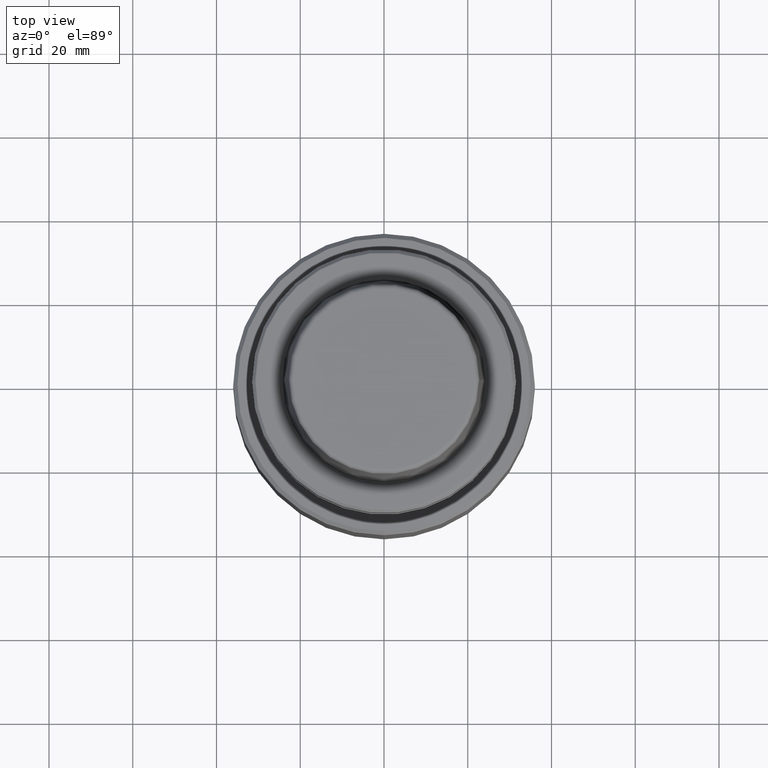
[diagram: clean part render]
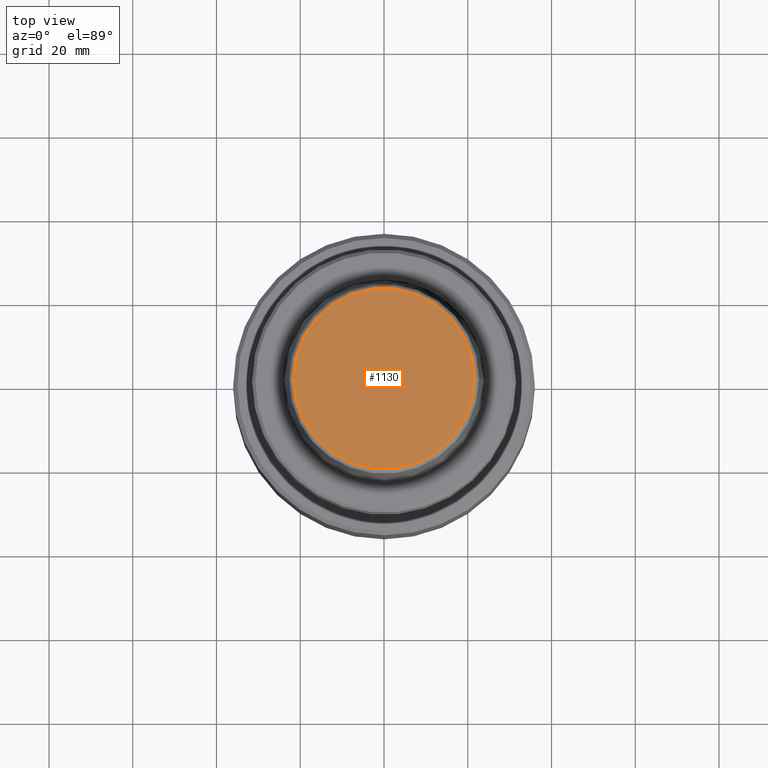
[diagram: same view with one face highlighted and labeled with its STEP entity id]
A machine part, top view. The second image highlights one B-rep face of the part: STEP entity #1130.
In plain terms, the highlighted planar face has unit normal (0, 0, -1).
Its self-contained STEP definition (entity closure, byte-faithful):
#16 = DIRECTION ( 'NONE',  ( -1.000000000000000000, 0.0000000000000000000, -0.0000000000000000000 ) ) ;
#78 = EDGE_CURVE ( 'NONE', #571, #1124, #728, .T. ) ;
#87 = CIRCLE ( 'NONE', #699, 21.58108272732117100 ) ;
#169 = EDGE_CURVE ( 'NONE', #1124, #571, #87, .T. ) ;
#222 = PLANE ( 'NONE',  #1311 ) ;
#358 = CARTESIAN_POINT ( 'NONE',  ( 21.58108272732117100, 0.0000000000000000000, 31.89999999999999900 ) ) ;
#512 = DIRECTION ( 'NONE',  ( 1.000000000000000000, 0.0000000000000000000, 0.0000000000000000000 ) ) ;
#534 = CARTESIAN_POINT ( 'NONE',  ( 0.0000000000000000000, 0.0000000000000000000, 31.89999999999999900 ) ) ;
#560 = DIRECTION ( 'NONE',  ( -0.0000000000000000000, -0.0000000000000000000, 1.000000000000000000 ) ) ;
#571 = VERTEX_POINT ( 'NONE', #358 ) ;
#600 = FACE_OUTER_BOUND ( 'NONE', #618, .T. ) ;
#618 = EDGE_LOOP ( 'NONE', ( #863, #801 ) ) ;
#699 = AXIS2_PLACEMENT_3D ( 'NONE', #1134, #1353, #512 ) ;
#728 = CIRCLE ( 'NONE', #1067, 21.58108272732117100 ) ;
#801 = ORIENTED_EDGE ( 'NONE', *, *, #169, .T. ) ;
#863 = ORIENTED_EDGE ( 'NONE', *, *, #78, .T. ) ;
#894 = CARTESIAN_POINT ( 'NONE',  ( 0.0000000000000000000, 0.0000000000000000000, 31.89999999999999900 ) ) ;
#1008 = DIRECTION ( 'NONE',  ( 1.000000000000000000, 0.0000000000000000000, 0.0000000000000000000 ) ) ;
#1067 = AXIS2_PLACEMENT_3D ( 'NONE', #894, #560, #1008 ) ;
#1076 = DIRECTION ( 'NONE',  ( 0.0000000000000000000, 0.0000000000000000000, -1.000000000000000000 ) ) ;
#1124 = VERTEX_POINT ( 'NONE', #1181 ) ;
#1130 = ADVANCED_FACE ( 'NONE', ( #600 ), #222, .F. ) ;
#1134 = CARTESIAN_POINT ( 'NONE',  ( 0.0000000000000000000, 0.0000000000000000000, 31.89999999999999900 ) ) ;
#1181 = CARTESIAN_POINT ( 'NONE',  ( -21.58108272732117100, 2.716307157494421400E-015, 31.89999999999999900 ) ) ;
#1311 = AXIS2_PLACEMENT_3D ( 'NONE', #534, #1076, #16 ) ;
#1353 = DIRECTION ( 'NONE',  ( -0.0000000000000000000, -0.0000000000000000000, 1.000000000000000000 ) ) ;